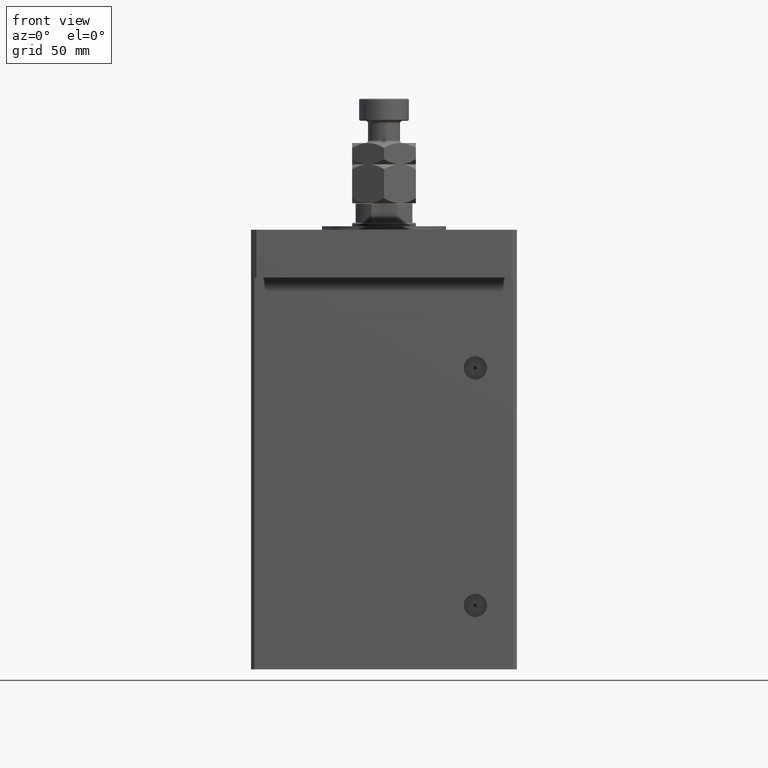
[diagram: clean part render]
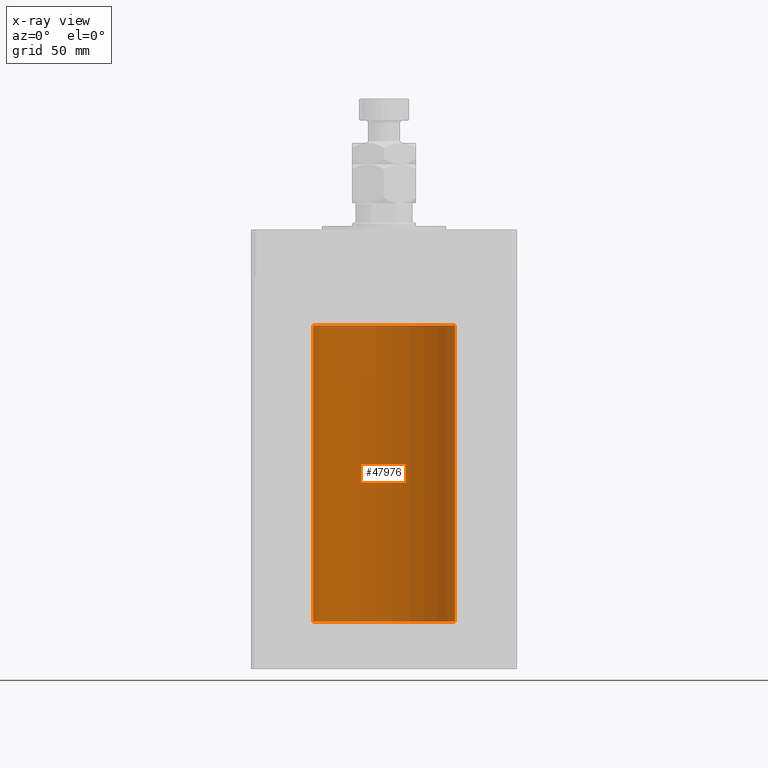
[diagram: x-ray — body ghosted, one internal face saturated and labeled with its STEP entity id]
A machine part, front view, then the same camera in x-ray: the body is ghosted and one INTERNAL B-rep face — a face not visible from any outside direction — is saturated and labeled: STEP entity #47976.
In plain terms, the highlighted cylindrical surface (partial cylindrical patch) has radius 40 mm, axis along (-0, -0, -1).
Its self-contained STEP definition (entity closure, byte-faithful):
#204 = EDGE_CURVE ( 'NONE', #11084, #972, #47191, .T. ) ;
#972 = VERTEX_POINT ( 'NONE', #38991 ) ;
#1386 = CIRCLE ( 'NONE', #39777, 40.00000000000000000 ) ;
#8240 = DIRECTION ( 'NONE',  ( -1.000000000000000000, 0.000000000000000000, 0.000000000000000000 ) ) ;
#10221 = ORIENTED_EDGE ( 'NONE', *, *, #204, .F. ) ;
#11084 = VERTEX_POINT ( 'NONE', #43570 ) ;
#12523 = DIRECTION ( 'NONE',  ( -0.000000000000000000, 0.000000000000000000, 1.000000000000000000 ) ) ;
#12977 = FACE_OUTER_BOUND ( 'NONE', #31708, .T. ) ;
#14706 = VECTOR ( 'NONE', #51094, 1000.000000000000000 ) ;
#15201 = VECTOR ( 'NONE', #40313, 1000.000000000000000 ) ;
#15269 = ORIENTED_EDGE ( 'NONE', *, *, #32978, .T. ) ;
#15825 = CIRCLE ( 'NONE', #35431, 40.00000000000000000 ) ;
#19558 = ORIENTED_EDGE ( 'NONE', *, *, #24531, .T. ) ;
#21495 = EDGE_CURVE ( 'NONE', #972, #54336, #1386, .T. ) ;
#21723 = CARTESIAN_POINT ( 'NONE',  ( 0.000000000000000000, 0.000000000000000000, 167.0000000000000000 ) ) ;
#24531 = EDGE_CURVE ( 'NONE', #11084, #44467, #15825, .T. ) ;
#24678 = DIRECTION ( 'NONE',  ( 1.000000000000000000, 0.000000000000000000, 0.000000000000000000 ) ) ;
#26248 = CARTESIAN_POINT ( 'NONE',  ( 0.000000000000000000, 0.000000000000000000, 0.000000000000000000 ) ) ;
#26405 = ORIENTED_EDGE ( 'NONE', *, *, #21495, .F. ) ;
#26923 = LINE ( 'NONE', #43950, #15201 ) ;
#30419 = CARTESIAN_POINT ( 'NONE',  ( 40.00000000000000000, 4.898587196589412237E-15, 167.0000000000000000 ) ) ;
#31708 = EDGE_LOOP ( 'NONE', ( #10221, #19558, #15269, #26405 ) ) ;
#32978 = EDGE_CURVE ( 'NONE', #44467, #54336, #26923, .T. ) ;
#35431 = AXIS2_PLACEMENT_3D ( 'NONE', #21723, #12523, #51339 ) ;
#35801 = CARTESIAN_POINT ( 'NONE',  ( -40.00000000000000000, 0.000000000000000000, 167.0000000000000000 ) ) ;
#37858 = CARTESIAN_POINT ( 'NONE',  ( 0.000000000000000000, 0.000000000000000000, 167.0000000000000000 ) ) ;
#38991 = CARTESIAN_POINT ( 'NONE',  ( 40.00000000000000000, 4.898587196589412237E-15, 0.000000000000000000 ) ) ;
#39777 = AXIS2_PLACEMENT_3D ( 'NONE', #26248, #43278, #24678 ) ;
#40313 = DIRECTION ( 'NONE',  ( -0.000000000000000000, -0.000000000000000000, -1.000000000000000000 ) ) ;
#40691 = AXIS2_PLACEMENT_3D ( 'NONE', #37858, #41502, #8240 ) ;
#41502 = DIRECTION ( 'NONE',  ( -0.000000000000000000, -0.000000000000000000, -1.000000000000000000 ) ) ;
#43278 = DIRECTION ( 'NONE',  ( -0.000000000000000000, 0.000000000000000000, 1.000000000000000000 ) ) ;
#43570 = CARTESIAN_POINT ( 'NONE',  ( 40.00000000000000000, 4.898587196589412237E-15, 167.0000000000000000 ) ) ;
#43950 = CARTESIAN_POINT ( 'NONE',  ( -40.00000000000000000, 0.000000000000000000, 167.0000000000000000 ) ) ;
#44467 = VERTEX_POINT ( 'NONE', #35801 ) ;
#45227 = CARTESIAN_POINT ( 'NONE',  ( -40.00000000000000000, 0.000000000000000000, 0.000000000000000000 ) ) ;
#46244 = CYLINDRICAL_SURFACE ( 'NONE', #40691, 40.00000000000000000 ) ;
#47191 = LINE ( 'NONE', #30419, #14706 ) ;
#47976 = ADVANCED_FACE ( 'NONE', ( #12977 ), #46244, .F. ) ;
#51094 = DIRECTION ( 'NONE',  ( -0.000000000000000000, -0.000000000000000000, -1.000000000000000000 ) ) ;
#51339 = DIRECTION ( 'NONE',  ( 1.000000000000000000, 0.000000000000000000, 0.000000000000000000 ) ) ;
#54336 = VERTEX_POINT ( 'NONE', #45227 ) ;